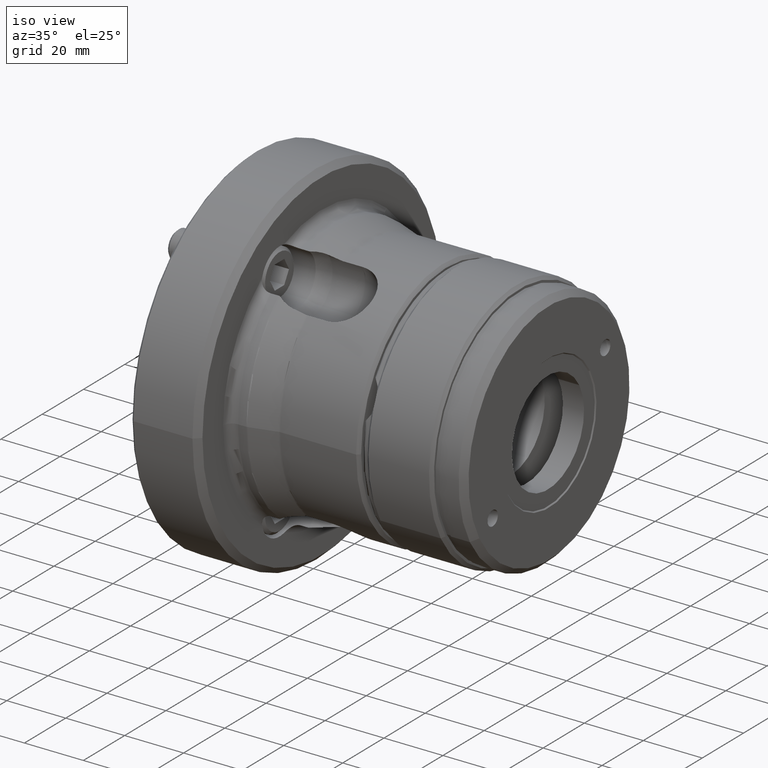
[diagram: clean part render]
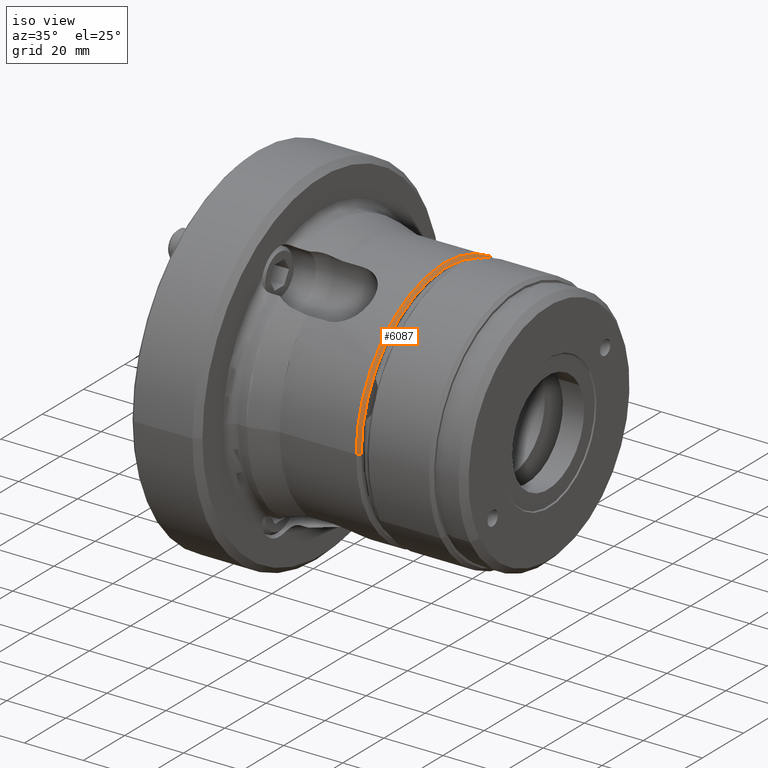
[diagram: same view with one face highlighted and labeled with its STEP entity id]
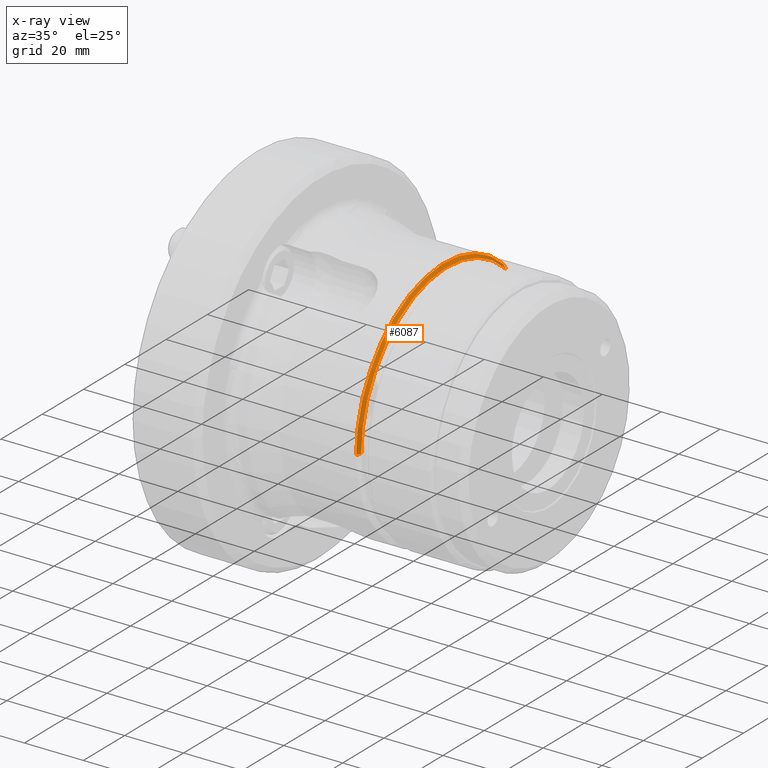
[diagram: x-ray of the same camera — body ghosted, the highlighted face saturated]
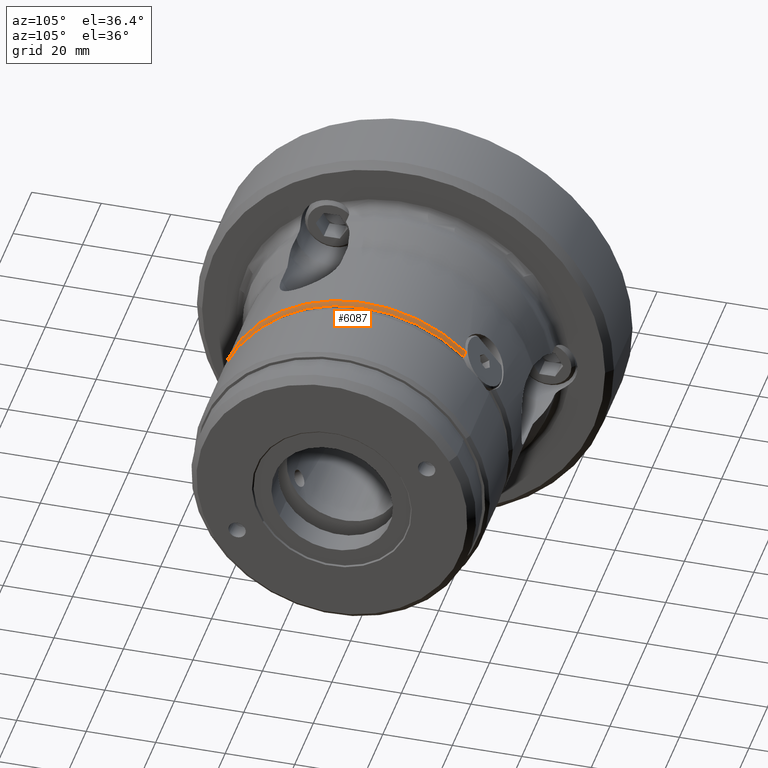
[diagram: same view with one face highlighted and labeled with its STEP entity id]
A machine part, iso view. The second image highlights one B-rep face of the part: STEP entity #6087.
The next image is the same camera in x-ray: the body ghosted, the highlighted face saturated — about 1% of this face is hidden behind the body in this view.
A second angle (auxiliary view) of the same face is appended — the face is thin or edge-on in the first view.
In plain terms, the highlighted conical surface has half-angle 45 deg.
Its self-contained STEP definition (entity closure, byte-faithful):
#26 = DIRECTION ( 'NONE',  ( 1.000000000000000000, -8.386477729145238100E-033, 0.0000000000000000000 ) ) ;
#601 = EDGE_LOOP ( 'NONE', ( #7444, #7983, #4204, #5647 ) ) ;
#758 = VERTEX_POINT ( 'NONE', #5791 ) ;
#1400 = AXIS2_PLACEMENT_3D ( 'NONE', #2196, #4319, #7186 ) ;
#1567 = CARTESIAN_POINT ( 'NONE',  ( 64.30000000000001100, -42.50000000000000000, 0.0000000000000000000 ) ) ;
#1716 = CARTESIAN_POINT ( 'NONE',  ( 65.30000000000001100, 28.69102284946631100, 29.98458283604095000 ) ) ;
#1796 = AXIS2_PLACEMENT_3D ( 'NONE', #4310, #26, #5030 ) ;
#2196 = CARTESIAN_POINT ( 'NONE',  ( 64.30000000000001100, -5.392505179840389000E-031, 0.0000000000000000000 ) ) ;
#2306 = CARTESIAN_POINT ( 'NONE',  ( 64.30000000000001100, -5.392505179840389000E-031, 0.0000000000000000000 ) ) ;
#2329 = B_SPLINE_CURVE_WITH_KNOTS ( 'NONE', 3,
 ( #5286, #5199, #6007, #1716 ),
 .UNSPECIFIED., .F., .F.,
 ( 4, 4 ),
 ( 0.0001480226728332736500, 0.001671500335737388400 ),
 .UNSPECIFIED. ) ;
#2455 = CARTESIAN_POINT ( 'NONE',  ( 65.30000000000001100, -41.49999999999999300, 0.0000000000000000000 ) ) ;
#2622 = VERTEX_POINT ( 'NONE', #3482 ) ;
#2867 = VECTOR ( 'NONE', #5098, 1000.000000000000100 ) ;
#3009 = DIRECTION ( 'NONE',  ( 0.0000000000000000000, -1.000000000000000000, 0.0000000000000000000 ) ) ;
#3482 = CARTESIAN_POINT ( 'NONE',  ( 64.30000000000001100, -42.50000000000000000, 0.0000000000000000000 ) ) ;
#3534 = CIRCLE ( 'NONE', #1796, 41.49999999999999300 ) ;
#3844 = VERTEX_POINT ( 'NONE', #8628 ) ;
#4131 = EDGE_CURVE ( 'NONE', #2622, #758, #4918, .T. ) ;
#4204 = ORIENTED_EDGE ( 'NONE', *, *, #9225, .F. ) ;
#4310 = CARTESIAN_POINT ( 'NONE',  ( 65.30000000000001100, -5.476369957131840800E-031, 0.0000000000000000000 ) ) ;
#4319 = DIRECTION ( 'NONE',  ( -1.000000000000000000, 8.386477729145201100E-033, -0.0000000000000000000 ) ) ;
#4563 = CONICAL_SURFACE ( 'NONE', #1400, 42.50000000000000000, 0.7853981633974517200 ) ;
#4762 = LINE ( 'NONE', #1567, #2867 ) ;
#4786 = FACE_OUTER_BOUND ( 'NONE', #601, .T. ) ;
#4918 = CIRCLE ( 'NONE', #7452, 42.50000000000000000 ) ;
#5030 = DIRECTION ( 'NONE',  ( 0.0000000000000000000, -1.000000000000000000, 0.0000000000000000000 ) ) ;
#5098 = DIRECTION ( 'NONE',  ( -0.7071067811865451300, -0.7071067811865500200, 0.0000000000000000000 ) ) ;
#5199 = CARTESIAN_POINT ( 'NONE',  ( 64.64288800751896200, 28.84500544899486500, 30.74429537686536700 ) ) ;
#5286 = CARTESIAN_POINT ( 'NONE',  ( 64.30000000000001100, 28.96545797802642500, 31.10067915855191600 ) ) ;
#5647 = ORIENTED_EDGE ( 'NONE', *, *, #4131, .F. ) ;
#5700 = VERTEX_POINT ( 'NONE', #2455 ) ;
#5791 = CARTESIAN_POINT ( 'NONE',  ( 64.30000000000001100, 28.96545797802642500, 31.10067915855191600 ) ) ;
#6007 = CARTESIAN_POINT ( 'NONE',  ( 64.97685759737612400, 28.75238346332914900, 30.37311286823110400 ) ) ;
#6087 = ADVANCED_FACE ( 'NONE', ( #4786 ), #4563, .T. ) ;
#7129 = EDGE_CURVE ( 'NONE', #3844, #5700, #3534, .T. ) ;
#7186 = DIRECTION ( 'NONE',  ( 0.0000000000000000000, -1.000000000000000000, 0.0000000000000000000 ) ) ;
#7249 = EDGE_CURVE ( 'NONE', #5700, #2622, #4762, .T. ) ;
#7282 = DIRECTION ( 'NONE',  ( -1.000000000000000000, 8.386477729145201100E-033, -0.0000000000000000000 ) ) ;
#7444 = ORIENTED_EDGE ( 'NONE', *, *, #7249, .F. ) ;
#7452 = AXIS2_PLACEMENT_3D ( 'NONE', #2306, #7282, #3009 ) ;
#7983 = ORIENTED_EDGE ( 'NONE', *, *, #7129, .F. ) ;
#8628 = CARTESIAN_POINT ( 'NONE',  ( 65.30000000000001100, 28.69102284946631100, 29.98458283604095000 ) ) ;
#9225 = EDGE_CURVE ( 'NONE', #758, #3844, #2329, .T. ) ;